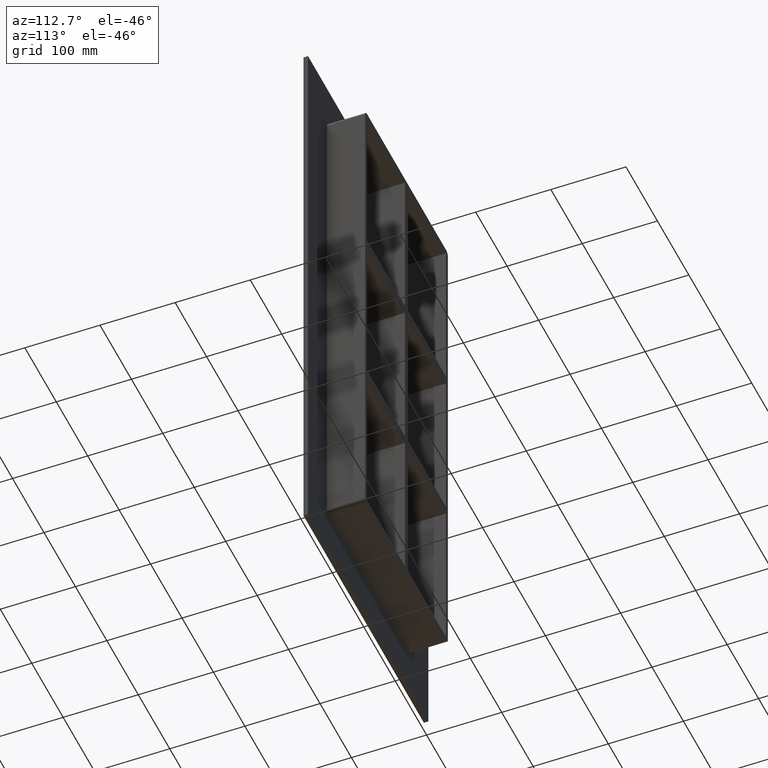
[diagram: clean part render]
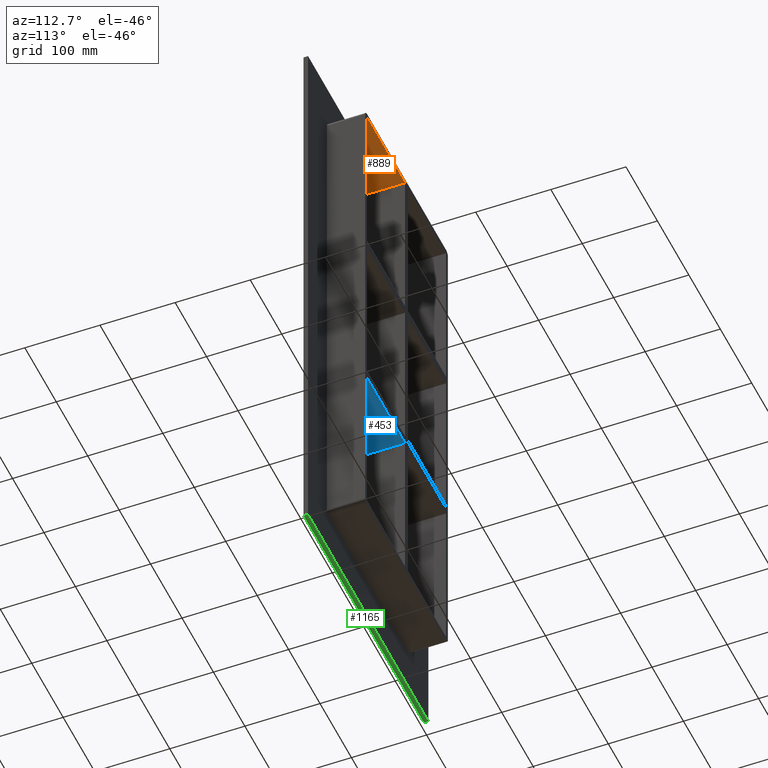
[diagram: same view with three faces highlighted in distinct colors, each labeled with its STEP entity id]
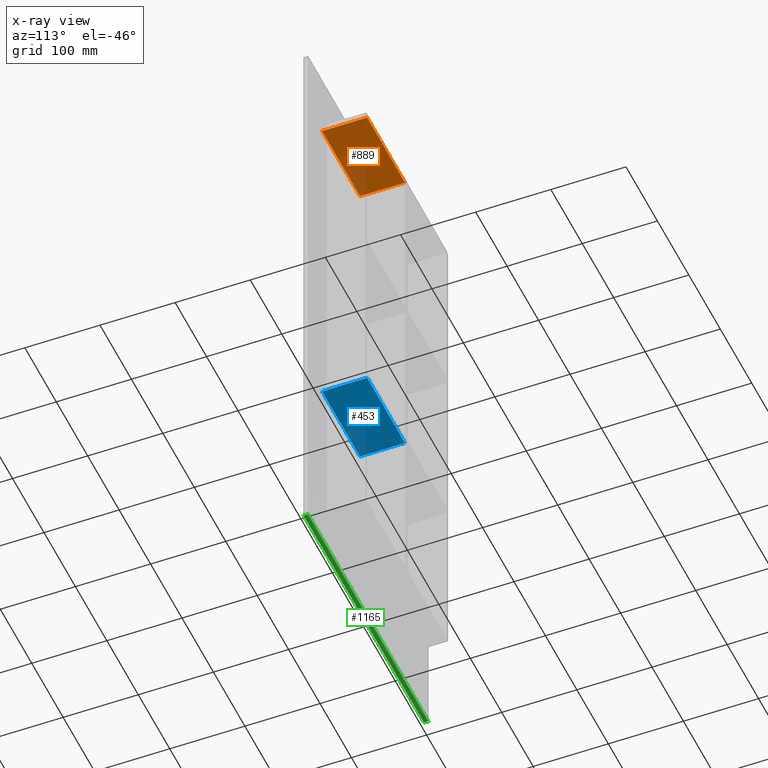
[diagram: x-ray of the same camera — body ghosted, the three highlighted faces saturated]
A machine part, auxiliary view with three faces highlighted in distinct colors.
The next image is the same camera in x-ray (body ghosted, the three faces saturated) — at least one of them is partly hidden behind the body in this view.
Their STEP definitions:

[orange] entity #889 — the highlighted planar face has unit normal (0, 0, 1).
#296=CARTESIAN_POINT('',(125.49999999999999,-3.0,339.00000000000006));
#297=VERTEX_POINT('',#296);
#304=CARTESIAN_POINT('',(125.49999999999999,57.0,339.00000000000006));
#305=VERTEX_POINT('',#304);
#306=CARTESIAN_POINT('',(125.49999999999999,-3.0,339.00000000000006));
#307=DIRECTION('',(0.0,1.0,0.0));
#308=VECTOR('',#307,60.0);
#309=LINE('',#306,#308);
#310=EDGE_CURVE('',#297,#305,#309,.T.);
#389=CARTESIAN_POINT('',(5.0,57.0,339.00000000000006));
#390=VERTEX_POINT('',#389);
#397=CARTESIAN_POINT('',(5.0,-3.0,339.00000000000006));
#398=VERTEX_POINT('',#397);
#399=CARTESIAN_POINT('',(5.0,-3.0,339.00000000000006));
#400=DIRECTION('',(0.0,1.0,0.0));
#401=VECTOR('',#400,60.000000000000007);
#402=LINE('',#399,#401);
#403=EDGE_CURVE('',#398,#390,#402,.T.);
#691=CARTESIAN_POINT('',(125.5,57.0,339.00000000000006));
#692=DIRECTION('',(-1.0,0.0,0.0));
#693=VECTOR('',#692,120.5);
#694=LINE('',#691,#693);
#695=EDGE_CURVE('',#305,#390,#694,.T.);
#873=CARTESIAN_POINT('',(-125.5,0.0,339.00000000000006));
#874=DIRECTION('',(0.0,0.0,1.0));
#875=DIRECTION('',(1.0,0.0,0.0));
#876=AXIS2_PLACEMENT_3D('',#873,#874,#875);
#877=PLANE('',#876);
#878=ORIENTED_EDGE('',*,*,#403,.T.);
#879=ORIENTED_EDGE('',*,*,#695,.F.);
#880=ORIENTED_EDGE('',*,*,#310,.F.);
#881=CARTESIAN_POINT('',(5.000000000000007,-3.0,339.00000000000006));
#882=DIRECTION('',(1.0,0.0,0.0));
#883=VECTOR('',#882,120.5);
#884=LINE('',#881,#883);
#885=EDGE_CURVE('',#398,#297,#884,.T.);
#886=ORIENTED_EDGE('',*,*,#885,.F.);
#887=EDGE_LOOP('',(#878,#879,#880,#886));
#888=FACE_OUTER_BOUND('',#887,.T.);
#889=ADVANCED_FACE('',(#888),#877,.F.);

[blue] entity #453 — the highlighted planar face has unit normal (0, 0, -1).
#414=CARTESIAN_POINT('',(125.50000000000182,-3.0,-121.00000000000934));
#415=DIRECTION('',(0.0,0.0,-1.0));
#416=DIRECTION('',(-1.0,0.0,0.0));
#417=AXIS2_PLACEMENT_3D('',#414,#415,#416);
#418=PLANE('',#417);
#419=CARTESIAN_POINT('',(5.0,57.0,-121.00000000000934));
#420=VERTEX_POINT('',#419);
#421=CARTESIAN_POINT('',(5.0,-3.0,-121.00000000000934));
#422=VERTEX_POINT('',#421);
#423=CARTESIAN_POINT('',(5.0,57.0,-121.00000000000932));
#424=DIRECTION('',(0.0,-1.0,0.0));
#425=VECTOR('',#424,60.0);
#426=LINE('',#423,#425);
#427=EDGE_CURVE('',#420,#422,#426,.T.);
#428=ORIENTED_EDGE('',*,*,#427,.F.);
#429=CARTESIAN_POINT('',(125.5000000000018,57.0,-121.00000000000934));
#430=VERTEX_POINT('',#429);
#431=CARTESIAN_POINT('',(125.50000000000182,57.0,-121.00000000000934));
#432=DIRECTION('',(-1.0,0.0,0.0));
#433=VECTOR('',#432,120.50000000000182);
#434=LINE('',#431,#433);
#435=EDGE_CURVE('',#430,#420,#434,.T.);
#436=ORIENTED_EDGE('',*,*,#435,.F.);
#437=CARTESIAN_POINT('',(125.50000000000182,-3.0,-121.00000000000934));
#438=VERTEX_POINT('',#437);
#439=CARTESIAN_POINT('',(125.49999999999999,-3.0,-121.00000000000932));
#440=DIRECTION('',(0.0,1.0,0.0));
#441=VECTOR('',#440,60.000000000000007);
#442=LINE('',#439,#441);
#443=EDGE_CURVE('',#438,#430,#442,.T.);
#444=ORIENTED_EDGE('',*,*,#443,.F.);
#445=CARTESIAN_POINT('',(125.50000000000182,-3.0,-121.00000000000934));
#446=DIRECTION('',(-1.0,0.0,0.0));
#447=VECTOR('',#446,120.50000000000182);
#448=LINE('',#445,#447);
#449=EDGE_CURVE('',#438,#422,#448,.T.);
#450=ORIENTED_EDGE('',*,*,#449,.T.);
#451=EDGE_LOOP('',(#428,#436,#444,#450));
#452=FACE_OUTER_BOUND('',#451,.T.);
#453=ADVANCED_FACE('',(#452),#418,.T.);

[green] entity #1165 — the highlighted planar face has unit normal (0, 0, -1).
#922=CARTESIAN_POINT('',(191.5,6.000000000000001,-405.00000000000006));
#923=VERTEX_POINT('',#922);
#930=CARTESIAN_POINT('',(-191.5,6.000000000000001,-405.00000000000006));
#931=VERTEX_POINT('',#930);
#932=CARTESIAN_POINT('',(191.5,6.000000000000001,-405.00000000000006));
#933=DIRECTION('',(-1.0,0.0,0.0));
#934=VECTOR('',#933,383.0);
#935=LINE('',#932,#934);
#936=EDGE_CURVE('',#923,#931,#935,.T.);
#1032=CARTESIAN_POINT('',(-191.5,0.0,-405.00000000000006));
#1033=VERTEX_POINT('',#1032);
#1040=CARTESIAN_POINT('',(191.5,0.0,-405.00000000000006));
#1041=VERTEX_POINT('',#1040);
#1042=CARTESIAN_POINT('',(191.5,0.0,-405.00000000000006));
#1043=DIRECTION('',(-1.0,0.0,0.0));
#1044=VECTOR('',#1043,383.0);
#1045=LINE('',#1042,#1044);
#1046=EDGE_CURVE('',#1041,#1033,#1045,.T.);
#1140=CARTESIAN_POINT('',(-191.5,0.0,-405.00000000000006));
#1141=DIRECTION('',(0.0,1.0,0.0));
#1142=VECTOR('',#1141,6.000000000000001);
#1143=LINE('',#1140,#1142);
#1144=EDGE_CURVE('',#1033,#931,#1143,.T.);
#1149=CARTESIAN_POINT('',(191.5,0.0,-405.00000000000006));
#1150=DIRECTION('',(0.0,0.0,-1.0));
#1151=DIRECTION('',(-1.0,0.0,0.0));
#1152=AXIS2_PLACEMENT_3D('',#1149,#1150,#1151);
#1153=PLANE('',#1152);
#1154=ORIENTED_EDGE('',*,*,#1046,.T.);
#1155=ORIENTED_EDGE('',*,*,#1144,.T.);
#1156=ORIENTED_EDGE('',*,*,#936,.F.);
#1157=CARTESIAN_POINT('',(191.5,0.0,-405.00000000000006));
#1158=DIRECTION('',(0.0,1.0,0.0));
#1159=VECTOR('',#1158,6.000000000000001);
#1160=LINE('',#1157,#1159);
#1161=EDGE_CURVE('',#1041,#923,#1160,.T.);
#1162=ORIENTED_EDGE('',*,*,#1161,.F.);
#1163=EDGE_LOOP('',(#1154,#1155,#1156,#1162));
#1164=FACE_OUTER_BOUND('',#1163,.T.);
#1165=ADVANCED_FACE('',(#1164),#1153,.T.);